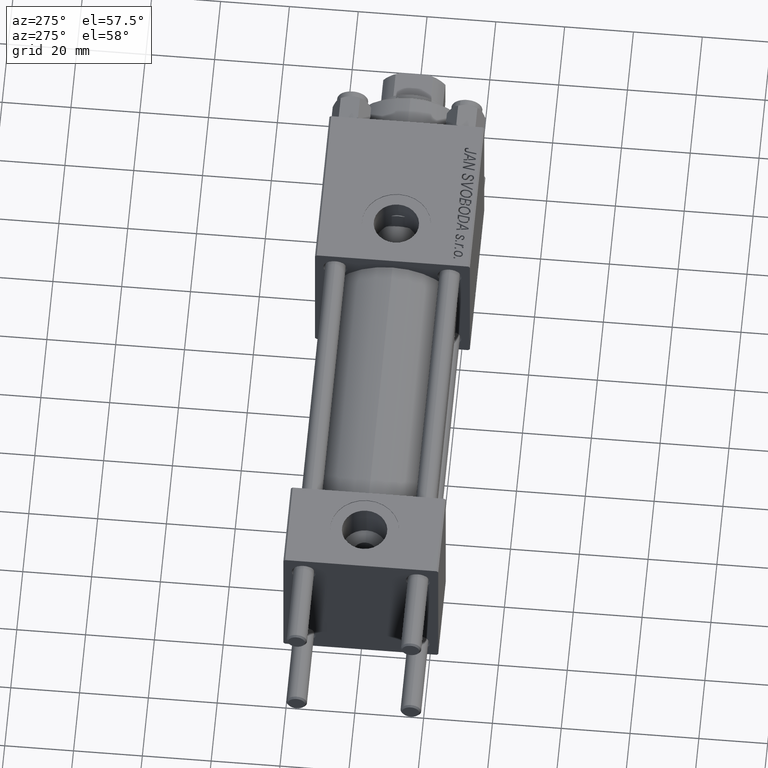
[diagram: clean part render]
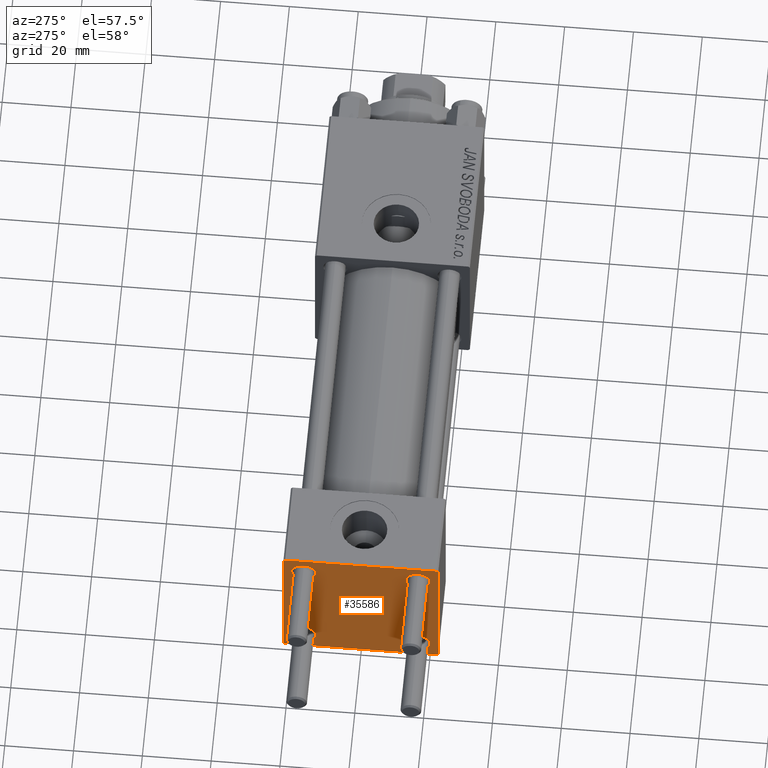
[diagram: same view with one face highlighted and labeled with its STEP entity id]
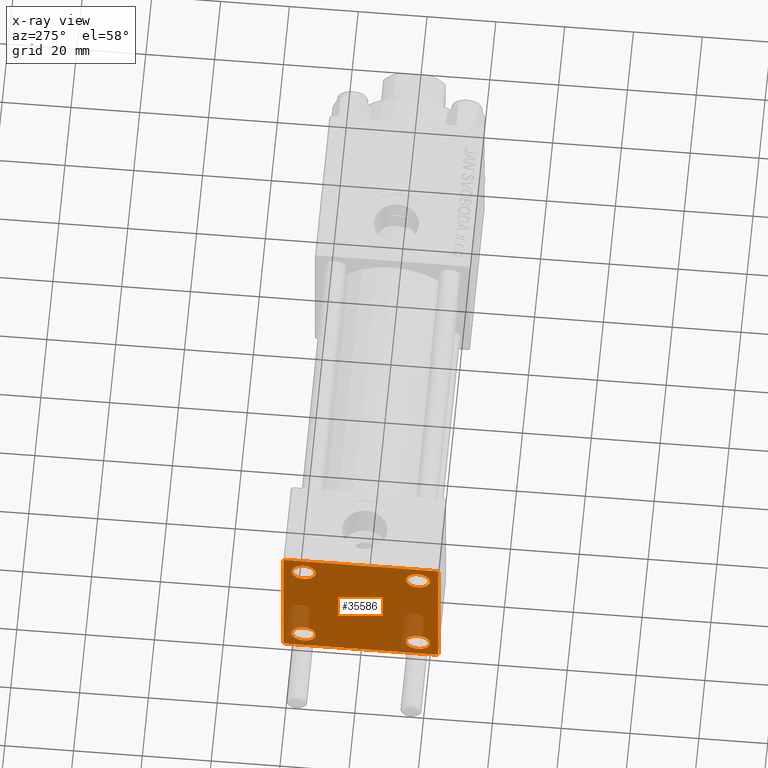
[diagram: x-ray of the same camera — body ghosted, the highlighted face saturated]
A machine part, auxiliary view. The second image highlights one B-rep face of the part: STEP entity #35586.
The next image is the same camera in x-ray: the body ghosted, the highlighted face saturated — about 10% of this face is hidden behind the body in this view.
In plain terms, the highlighted planar face has unit normal (-1, 0, 0).
Its self-contained STEP definition (entity closure, byte-faithful):
#33 = DIRECTION ( 'NONE',  ( 0.000000000000000000, 0.7071067811865474617, -0.7071067811865474617 ) ) ;
#290 = CARTESIAN_POINT ( 'NONE',  ( 0.000000000000000000, 22.25000000000014566, -22.24999999999984013 ) ) ;
#600 = AXIS2_PLACEMENT_3D ( 'NONE', #37465, #40999, #2309 ) ;
#1055 = EDGE_CURVE ( 'NONE', #14551, #7107, #43221, .T. ) ;
#1372 = DIRECTION ( 'NONE',  ( -1.000000000000000000, 0.000000000000000000, -0.000000000000000000 ) ) ;
#1903 = ORIENTED_EDGE ( 'NONE', *, *, #20440, .T. ) ;
#1985 = EDGE_CURVE ( 'NONE', #21770, #32268, #33615, .T. ) ;
#2309 = DIRECTION ( 'NONE',  ( 0.000000000000000000, 0.000000000000000000, 1.000000000000000000 ) ) ;
#3507 = EDGE_CURVE ( 'NONE', #12496, #28320, #35204, .T. ) ;
#3637 = ORIENTED_EDGE ( 'NONE', *, *, #19609, .T. ) ;
#3810 = VERTEX_POINT ( 'NONE', #45727 ) ;
#5594 = CARTESIAN_POINT ( 'NONE',  ( 0.000000000000000000, 16.59999999999999787, 16.60000000000000497 ) ) ;
#5612 = CIRCLE ( 'NONE', #8027, 3.499999999999996003 ) ;
#5893 = LINE ( 'NONE', #47891, #32365 ) ;
#6496 = ORIENTED_EDGE ( 'NONE', *, *, #7530, .T. ) ;
#6652 = DIRECTION ( 'NONE',  ( 0.000000000000000000, 0.000000000000000000, 1.000000000000000000 ) ) ;
#6941 = EDGE_CURVE ( 'NONE', #28320, #25632, #42127, .T. ) ;
#7107 = VERTEX_POINT ( 'NONE', #44514 ) ;
#7156 = EDGE_LOOP ( 'NONE', ( #28490, #9534 ) ) ;
#7476 = CARTESIAN_POINT ( 'NONE',  ( 0.000000000000000000, 22.50000000000000000, -22.49999999999999645 ) ) ;
#7530 = EDGE_CURVE ( 'NONE', #32268, #21770, #14367, .T. ) ;
#7683 = CARTESIAN_POINT ( 'NONE',  ( 0.000000000000000000, -21.99999999999997868, 22.50000000000000000 ) ) ;
#8027 = AXIS2_PLACEMENT_3D ( 'NONE', #30663, #42040, #15455 ) ;
#8282 = ORIENTED_EDGE ( 'NONE', *, *, #9361, .T. ) ;
#8320 = DIRECTION ( 'NONE',  ( 1.000000000000000000, -0.000000000000000000, 0.000000000000000000 ) ) ;
#8631 = DIRECTION ( 'NONE',  ( 0.000000000000000000, 0.000000000000000000, 1.000000000000000000 ) ) ;
#8794 = CARTESIAN_POINT ( 'NONE',  ( 0.000000000000000000, 16.59999999999999787, -13.10000000000000675 ) ) ;
#8963 = FACE_OUTER_BOUND ( 'NONE', #41575, .T. ) ;
#9256 = VERTEX_POINT ( 'NONE', #17359 ) ;
#9358 = ORIENTED_EDGE ( 'NONE', *, *, #35634, .T. ) ;
#9361 = EDGE_CURVE ( 'NONE', #47992, #31276, #41068, .T. ) ;
#9534 = ORIENTED_EDGE ( 'NONE', *, *, #1055, .T. ) ;
#11112 = EDGE_CURVE ( 'NONE', #22076, #14879, #42629, .T. ) ;
#11542 = ORIENTED_EDGE ( 'NONE', *, *, #22724, .T. ) ;
#11577 = ORIENTED_EDGE ( 'NONE', *, *, #44998, .T. ) ;
#12102 = CARTESIAN_POINT ( 'NONE',  ( 0.000000000000000000, -22.50000000000000000, 22.50000000000000000 ) ) ;
#12109 = DIRECTION ( 'NONE',  ( 0.000000000000000000, 0.000000000000000000, 1.000000000000000000 ) ) ;
#12496 = VERTEX_POINT ( 'NONE', #40126 ) ;
#12504 = DIRECTION ( 'NONE',  ( -0.000000000000000000, 0.000000000000000000, 1.000000000000000000 ) ) ;
#12655 = CARTESIAN_POINT ( 'NONE',  ( 0.000000000000000000, 16.59999999999999787, 13.10000000000000675 ) ) ;
#13174 = DIRECTION ( 'NONE',  ( 1.000000000000000000, -0.000000000000000000, 0.000000000000000000 ) ) ;
#13247 = VECTOR ( 'NONE', #16786, 1000.000000000000000 ) ;
#13264 = EDGE_CURVE ( 'NONE', #25632, #45146, #17426, .T. ) ;
#13636 = DIRECTION ( 'NONE',  ( 0.000000000000000000, -0.7071067811865426878, 0.7071067811865524577 ) ) ;
#14222 = DIRECTION ( 'NONE',  ( 1.000000000000000000, -0.000000000000000000, 0.000000000000000000 ) ) ;
#14367 = CIRCLE ( 'NONE', #19203, 3.499999999999996003 ) ;
#14551 = VERTEX_POINT ( 'NONE', #27633 ) ;
#14879 = VERTEX_POINT ( 'NONE', #8794 ) ;
#14944 = AXIS2_PLACEMENT_3D ( 'NONE', #41301, #26362, #6652 ) ;
#15455 = DIRECTION ( 'NONE',  ( 0.000000000000000000, 0.000000000000000000, 1.000000000000000000 ) ) ;
#16127 = DIRECTION ( 'NONE',  ( 0.000000000000000000, 0.000000000000000000, -1.000000000000000000 ) ) ;
#16165 = ORIENTED_EDGE ( 'NONE', *, *, #6941, .T. ) ;
#16278 = ORIENTED_EDGE ( 'NONE', *, *, #30868, .F. ) ;
#16786 = DIRECTION ( 'NONE',  ( 0.000000000000000000, 0.000000000000000000, -1.000000000000000000 ) ) ;
#17359 = CARTESIAN_POINT ( 'NONE',  ( 0.000000000000000000, 22.50000000000000000, 21.99999999999999645 ) ) ;
#17426 = LINE ( 'NONE', #32880, #22501 ) ;
#17766 = DIRECTION ( 'NONE',  ( 0.000000000000000000, 0.000000000000000000, 1.000000000000000000 ) ) ;
#18132 = CARTESIAN_POINT ( 'NONE',  ( 0.000000000000000000, 22.50000000000000000, 22.50000000000000355 ) ) ;
#18178 = CARTESIAN_POINT ( 'NONE',  ( 0.000000000000000000, -21.99999999999997158, -22.50000000000000711 ) ) ;
#18297 = ORIENTED_EDGE ( 'NONE', *, *, #3507, .T. ) ;
#18518 = CARTESIAN_POINT ( 'NONE',  ( 0.000000000000000000, 22.24999999999999645, 22.24999999999999645 ) ) ;
#19203 = AXIS2_PLACEMENT_3D ( 'NONE', #40312, #21588, #37038 ) ;
#19240 = AXIS2_PLACEMENT_3D ( 'NONE', #33819, #34568, #26453 ) ;
#19305 = CARTESIAN_POINT ( 'NONE',  ( 0.000000000000000000, -16.59999999999999076, -20.10000000000000497 ) ) ;
#19469 = EDGE_CURVE ( 'NONE', #7107, #14551, #30643, .T. ) ;
#19609 = EDGE_CURVE ( 'NONE', #34146, #9256, #26600, .T. ) ;
#19696 = CARTESIAN_POINT ( 'NONE',  ( 0.000000000000000000, 16.59999999999999787, -16.60000000000000497 ) ) ;
#20089 = LINE ( 'NONE', #44130, #13247 ) ;
#20440 = EDGE_CURVE ( 'NONE', #31276, #47992, #5612, .T. ) ;
#20476 = EDGE_LOOP ( 'NONE', ( #20664, #6496 ) ) ;
#20556 = ORIENTED_EDGE ( 'NONE', *, *, #37731, .F. ) ;
#20664 = ORIENTED_EDGE ( 'NONE', *, *, #1985, .T. ) ;
#21159 = VECTOR ( 'NONE', #22427, 1000.000000000000000 ) ;
#21566 = DIRECTION ( 'NONE',  ( -0.000000000000000000, 0.7071067811865525687, 0.7071067811865425767 ) ) ;
#21588 = DIRECTION ( 'NONE',  ( 1.000000000000000000, -0.000000000000000000, 0.000000000000000000 ) ) ;
#21770 = VERTEX_POINT ( 'NONE', #48794 ) ;
#22076 = VERTEX_POINT ( 'NONE', #44175 ) ;
#22427 = DIRECTION ( 'NONE',  ( 0.000000000000000000, -1.000000000000000000, -7.709882115452476934E-17 ) ) ;
#22501 = VECTOR ( 'NONE', #13636, 1000.000000000000000 ) ;
#22574 = CARTESIAN_POINT ( 'NONE',  ( 0.000000000000000000, -16.59999999999999076, -13.10000000000001030 ) ) ;
#22724 = EDGE_CURVE ( 'NONE', #3810, #31974, #5893, .T. ) ;
#23270 = ORIENTED_EDGE ( 'NONE', *, *, #11112, .T. ) ;
#24643 = FACE_BOUND ( 'NONE', #44756, .T. ) ;
#24843 = VECTOR ( 'NONE', #39060, 1000.000000000000000 ) ;
#25632 = VERTEX_POINT ( 'NONE', #18178 ) ;
#25765 = VECTOR ( 'NONE', #33, 1000.000000000000114 ) ;
#26291 = AXIS2_PLACEMENT_3D ( 'NONE', #5594, #13174, #8631 ) ;
#26362 = DIRECTION ( 'NONE',  ( 1.000000000000000000, -0.000000000000000000, 0.000000000000000000 ) ) ;
#26453 = DIRECTION ( 'NONE',  ( 0.000000000000000000, 0.000000000000000000, 1.000000000000000000 ) ) ;
#26600 = LINE ( 'NONE', #18518, #25765 ) ;
#27518 = AXIS2_PLACEMENT_3D ( 'NONE', #19696, #8320, #12109 ) ;
#27633 = CARTESIAN_POINT ( 'NONE',  ( 0.000000000000000000, -16.59999999999999076, 13.10000000000001030 ) ) ;
#28320 = VERTEX_POINT ( 'NONE', #35170 ) ;
#28490 = ORIENTED_EDGE ( 'NONE', *, *, #19469, .T. ) ;
#28695 = PLANE ( 'NONE',  #44759 ) ;
#29013 = ORIENTED_EDGE ( 'NONE', *, *, #13264, .T. ) ;
#29786 = LINE ( 'NONE', #18132, #21159 ) ;
#30643 = CIRCLE ( 'NONE', #43557, 3.499999999999996003 ) ;
#30663 = CARTESIAN_POINT ( 'NONE',  ( 0.000000000000000000, -16.59999999999999076, -16.60000000000000853 ) ) ;
#30794 = CIRCLE ( 'NONE', #27518, 3.499999999999996003 ) ;
#30868 = EDGE_CURVE ( 'NONE', #34146, #31974, #29786, .T. ) ;
#31276 = VERTEX_POINT ( 'NONE', #19305 ) ;
#31494 = FACE_BOUND ( 'NONE', #43013, .T. ) ;
#31974 = VERTEX_POINT ( 'NONE', #7683 ) ;
#32268 = VERTEX_POINT ( 'NONE', #12655 ) ;
#32365 = VECTOR ( 'NONE', #21566, 999.9999999999998863 ) ;
#32496 = FACE_BOUND ( 'NONE', #20476, .T. ) ;
#32880 = CARTESIAN_POINT ( 'NONE',  ( 0.000000000000000000, -22.25000000000014566, -22.24999999999984013 ) ) ;
#33535 = VECTOR ( 'NONE', #16127, 1000.000000000000000 ) ;
#33615 = CIRCLE ( 'NONE', #26291, 3.499999999999996003 ) ;
#33819 = CARTESIAN_POINT ( 'NONE',  ( 0.000000000000000000, -16.59999999999999076, -16.60000000000000853 ) ) ;
#34146 = VERTEX_POINT ( 'NONE', #43494 ) ;
#34568 = DIRECTION ( 'NONE',  ( 1.000000000000000000, -0.000000000000000000, 0.000000000000000000 ) ) ;
#35170 = CARTESIAN_POINT ( 'NONE',  ( 0.000000000000000000, 21.99999999999999289, -22.49999999999999645 ) ) ;
#35204 = LINE ( 'NONE', #290, #43293 ) ;
#35586 = ADVANCED_FACE ( 'NONE', ( #47678, #24643, #31494, #32496, #8963 ), #28695, .T. ) ;
#35634 = EDGE_CURVE ( 'NONE', #9256, #12496, #20089, .T. ) ;
#37038 = DIRECTION ( 'NONE',  ( 0.000000000000000000, 0.000000000000000000, 1.000000000000000000 ) ) ;
#37465 = CARTESIAN_POINT ( 'NONE',  ( 0.000000000000000000, 16.59999999999999787, -16.60000000000000497 ) ) ;
#37731 = EDGE_CURVE ( 'NONE', #3810, #45146, #39412, .T. ) ;
#39060 = DIRECTION ( 'NONE',  ( 0.000000000000000000, -1.000000000000000000, -2.312964634635742957E-16 ) ) ;
#39412 = LINE ( 'NONE', #12102, #33535 ) ;
#40072 = CARTESIAN_POINT ( 'NONE',  ( 0.000000000000000000, 0.000000000000000000, 0.000000000000000000 ) ) ;
#40126 = CARTESIAN_POINT ( 'NONE',  ( 0.000000000000000000, 22.50000000000000000, -21.99999999999996803 ) ) ;
#40312 = CARTESIAN_POINT ( 'NONE',  ( 0.000000000000000000, 16.59999999999999787, 16.60000000000000497 ) ) ;
#40999 = DIRECTION ( 'NONE',  ( 1.000000000000000000, -0.000000000000000000, 0.000000000000000000 ) ) ;
#41068 = CIRCLE ( 'NONE', #19240, 3.499999999999996003 ) ;
#41301 = CARTESIAN_POINT ( 'NONE',  ( 0.000000000000000000, -16.59999999999999076, 16.60000000000000853 ) ) ;
#41575 = EDGE_LOOP ( 'NONE', ( #9358, #18297, #16165, #29013, #20556, #11542, #16278, #3637 ) ) ;
#42040 = DIRECTION ( 'NONE',  ( 1.000000000000000000, -0.000000000000000000, 0.000000000000000000 ) ) ;
#42127 = LINE ( 'NONE', #7476, #24843 ) ;
#42533 = DIRECTION ( 'NONE',  ( -0.000000000000000000, -0.7071067811865426878, -0.7071067811865524577 ) ) ;
#42629 = CIRCLE ( 'NONE', #600, 3.499999999999996003 ) ;
#43013 = EDGE_LOOP ( 'NONE', ( #11577, #23270 ) ) ;
#43221 = CIRCLE ( 'NONE', #14944, 3.499999999999996003 ) ;
#43293 = VECTOR ( 'NONE', #42533, 1000.000000000000000 ) ;
#43494 = CARTESIAN_POINT ( 'NONE',  ( 0.000000000000000000, 21.99999999999999289, 22.50000000000000355 ) ) ;
#43557 = AXIS2_PLACEMENT_3D ( 'NONE', #44349, #14222, #17766 ) ;
#44130 = CARTESIAN_POINT ( 'NONE',  ( 0.000000000000000000, 22.50000000000000000, 22.50000000000000355 ) ) ;
#44175 = CARTESIAN_POINT ( 'NONE',  ( 0.000000000000000000, 16.59999999999999787, -20.10000000000000142 ) ) ;
#44349 = CARTESIAN_POINT ( 'NONE',  ( 0.000000000000000000, -16.59999999999999076, 16.60000000000000853 ) ) ;
#44514 = CARTESIAN_POINT ( 'NONE',  ( 0.000000000000000000, -16.59999999999999076, 20.10000000000000853 ) ) ;
#44756 = EDGE_LOOP ( 'NONE', ( #8282, #1903 ) ) ;
#44759 = AXIS2_PLACEMENT_3D ( 'NONE', #40072, #1372, #12504 ) ;
#44998 = EDGE_CURVE ( 'NONE', #14879, #22076, #30794, .T. ) ;
#45146 = VERTEX_POINT ( 'NONE', #48288 ) ;
#45727 = CARTESIAN_POINT ( 'NONE',  ( 0.000000000000000000, -22.50000000000000000, 22.00000000000000000 ) ) ;
#47678 = FACE_BOUND ( 'NONE', #7156, .T. ) ;
#47891 = CARTESIAN_POINT ( 'NONE',  ( -0.000000000000000000, -22.24999999999984013, 22.25000000000015277 ) ) ;
#47992 = VERTEX_POINT ( 'NONE', #22574 ) ;
#48288 = CARTESIAN_POINT ( 'NONE',  ( 0.000000000000000000, -22.50000000000000000, -21.99999999999997158 ) ) ;
#48794 = CARTESIAN_POINT ( 'NONE',  ( 0.000000000000000000, 16.59999999999999787, 20.10000000000000142 ) ) ;